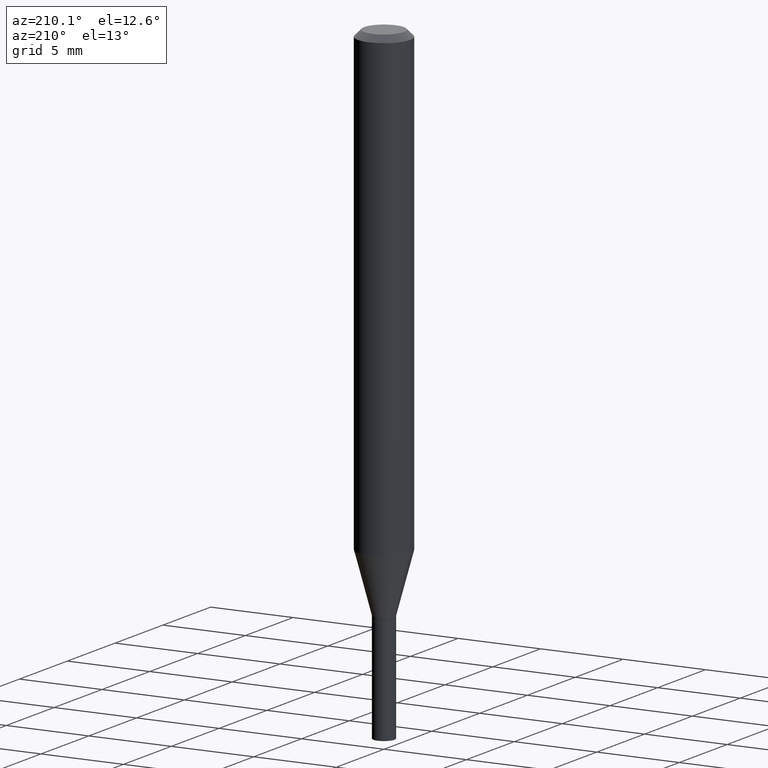
[diagram: clean part render]
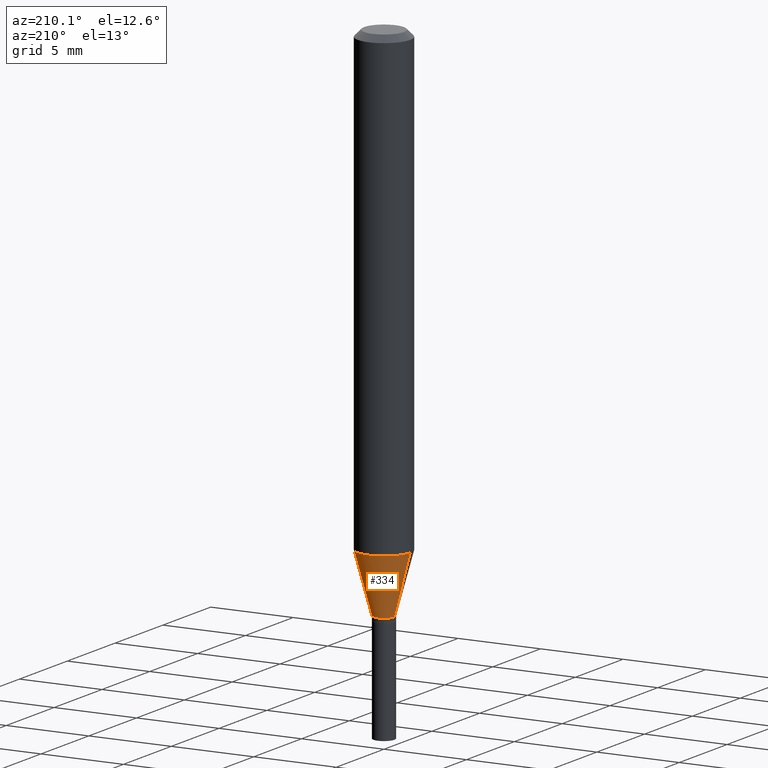
[diagram: same view with one face highlighted and labeled with its STEP entity id]
A machine part, auxiliary view. The second image highlights one B-rep face of the part: STEP entity #334.
In plain terms, the highlighted conical surface has half-angle 15 deg.
Its self-contained STEP definition (entity closure, byte-faithful):
#8 = AXIS2_PLACEMENT_3D ( 'NONE', #322, #184, #147 ) ;
#22 = VERTEX_POINT ( 'NONE', #450 ) ;
#32 = DIRECTION ( 'NONE',  ( -2.445468806185136597E-29, 3.491481338843145583E-15, 1.000000000000000000 ) ) ;
#38 = DIRECTION ( 'NONE',  ( 1.000000000000000000, -6.982962677686270655E-15, 0.000000000000000000 ) ) ;
#46 = CARTESIAN_POINT ( 'NONE',  ( 0.02499999999999992506, -4.504010927107657490E-15, -1.240000000000000213 ) ) ;
#75 = EDGE_CURVE ( 'NONE', #193, #342, #155, .T. ) ;
#83 = DIRECTION ( 'NONE',  ( -2.445468806185136597E-29, 3.491481338843145583E-15, 1.000000000000000000 ) ) ;
#102 = CONICAL_SURFACE ( 'NONE', #8, 0.02499999999999992506, 0.2617993877991497964 ) ;
#103 = CARTESIAN_POINT ( 'NONE',  ( 2.690133300931779832E-29, -3.840797394531454574E-15, -1.100048094716167268 ) ) ;
#108 = FACE_OUTER_BOUND ( 'NONE', #407, .T. ) ;
#110 = EDGE_CURVE ( 'NONE', #193, #177, #293, .T. ) ;
#119 = CARTESIAN_POINT ( 'NONE',  ( 3.032381319669569761E-29, -4.329436860165500822E-15, -1.240000000000000213 ) ) ;
#128 = ORIENTED_EDGE ( 'NONE', *, *, #330, .F. ) ;
#147 = DIRECTION ( 'NONE',  ( 1.000000000000000000, -6.982962677686276177E-15, 0.000000000000000000 ) ) ;
#150 = CARTESIAN_POINT ( 'NONE',  ( -0.02499999999999992506, -4.151801176225476407E-15, -1.240000000000000213 ) ) ;
#155 = LINE ( 'NONE', #46, #221 ) ;
#160 = VECTOR ( 'NONE', #260, 39.37007874015748143 ) ;
#177 = VERTEX_POINT ( 'NONE', #268 ) ;
#178 = CIRCLE ( 'NONE', #234, 0.06250000000000000000 ) ;
#181 = LINE ( 'NONE', #150, #160 ) ;
#184 = DIRECTION ( 'NONE',  ( -2.445468806185136597E-29, 3.491481338843145583E-15, 1.000000000000000000 ) ) ;
#193 = VERTEX_POINT ( 'NONE', #457 ) ;
#196 = ORIENTED_EDGE ( 'NONE', *, *, #75, .F. ) ;
#221 = VECTOR ( 'NONE', #369, 39.37007874015748143 ) ;
#234 = AXIS2_PLACEMENT_3D ( 'NONE', #103, #32, #38 ) ;
#260 = DIRECTION ( 'NONE',  ( -0.2588190451025211281, 5.211531920934548675E-15, 0.9659258262890682012 ) ) ;
#268 = CARTESIAN_POINT ( 'NONE',  ( -0.02499999999999992506, -3.774254680453434182E-15, -1.240000000000000213 ) ) ;
#292 = CARTESIAN_POINT ( 'NONE',  ( 0.06250000000000000000, -4.277232561886846243E-15, -1.100048094716167268 ) ) ;
#293 = CIRCLE ( 'NONE', #296, 0.02499999999999992506 ) ;
#296 = AXIS2_PLACEMENT_3D ( 'NONE', #119, #83, #406 ) ;
#322 = CARTESIAN_POINT ( 'NONE',  ( 3.032381319669569761E-29, -4.329436860165500822E-15, -1.240000000000000213 ) ) ;
#330 = EDGE_CURVE ( 'NONE', #342, #22, #178, .T. ) ;
#332 = ORIENTED_EDGE ( 'NONE', *, *, #415, .T. ) ;
#334 = ADVANCED_FACE ( 'NONE', ( #108 ), #102, .T. ) ;
#342 = VERTEX_POINT ( 'NONE', #292 ) ;
#369 = DIRECTION ( 'NONE',  ( 0.2588190451025211281, 1.565188264969623940E-15, 0.9659258262890682012 ) ) ;
#406 = DIRECTION ( 'NONE',  ( 1.000000000000000000, -6.982962677686276177E-15, 0.000000000000000000 ) ) ;
#407 = EDGE_LOOP ( 'NONE', ( #428, #332, #128, #196 ) ) ;
#415 = EDGE_CURVE ( 'NONE', #177, #22, #181, .T. ) ;
#428 = ORIENTED_EDGE ( 'NONE', *, *, #110, .T. ) ;
#450 = CARTESIAN_POINT ( 'NONE',  ( -0.06250000000000000000, -3.396708184681391958E-15, -1.100048094716167268 ) ) ;
#457 = CARTESIAN_POINT ( 'NONE',  ( 0.02499999999999992506, -4.504010927107657490E-15, -1.240000000000000213 ) ) ;